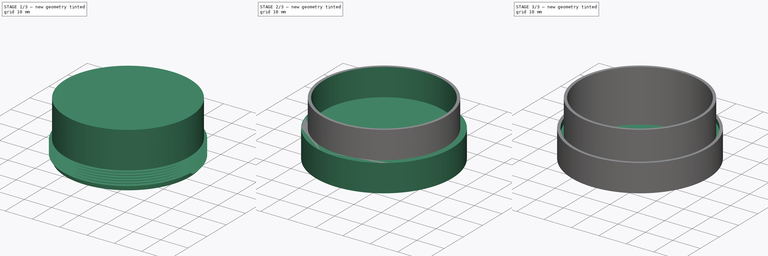
[diagram: build sequence overview — one tinted view per stage of 3, left to right]
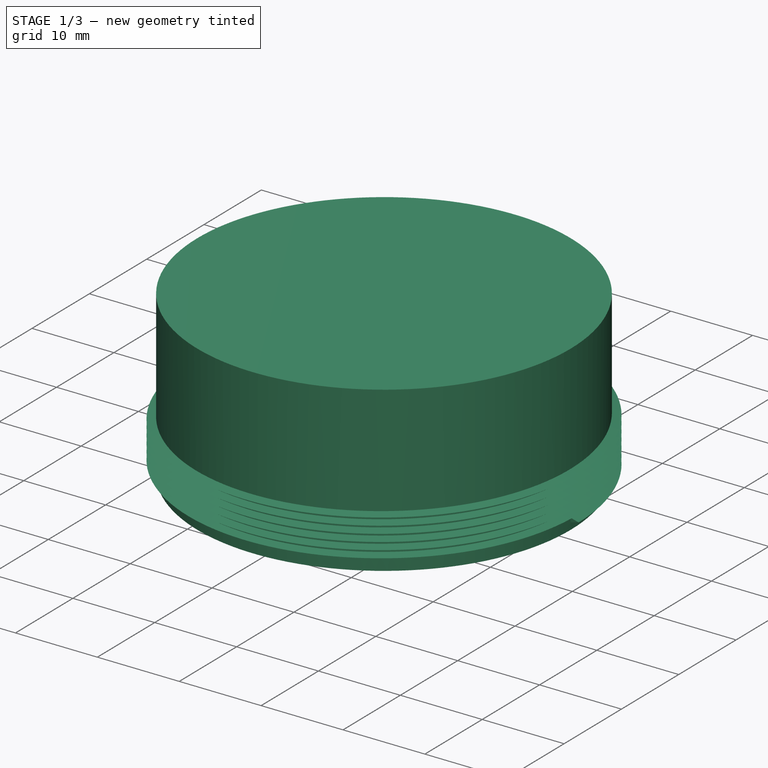
[diagram: stage 1 of 3 — iso view after this stage's code; geometry added in this stage tinted green]
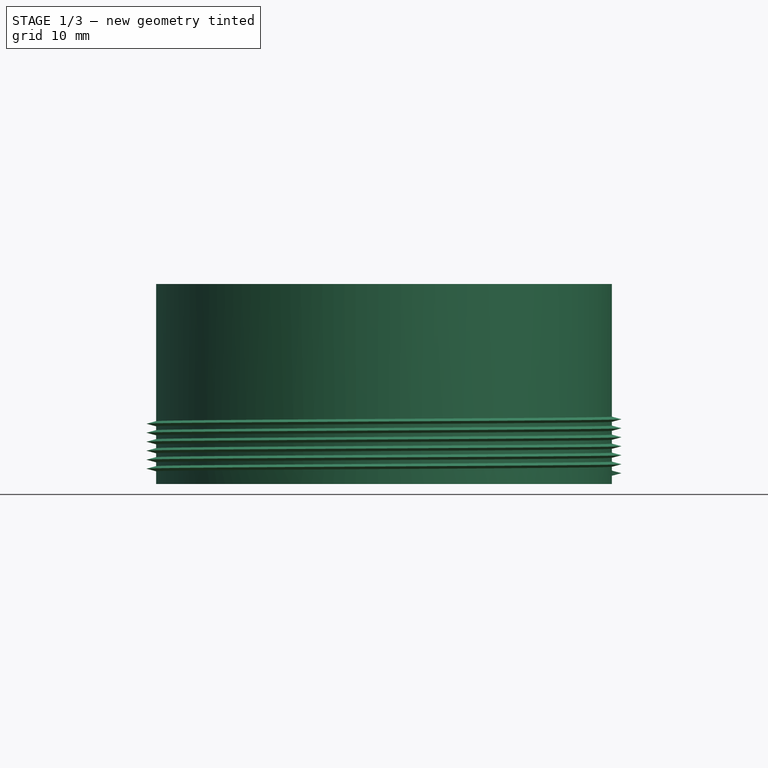
[diagram: stage 1 of 3 — front view after this stage's code; geometry added in this stage tinted green]
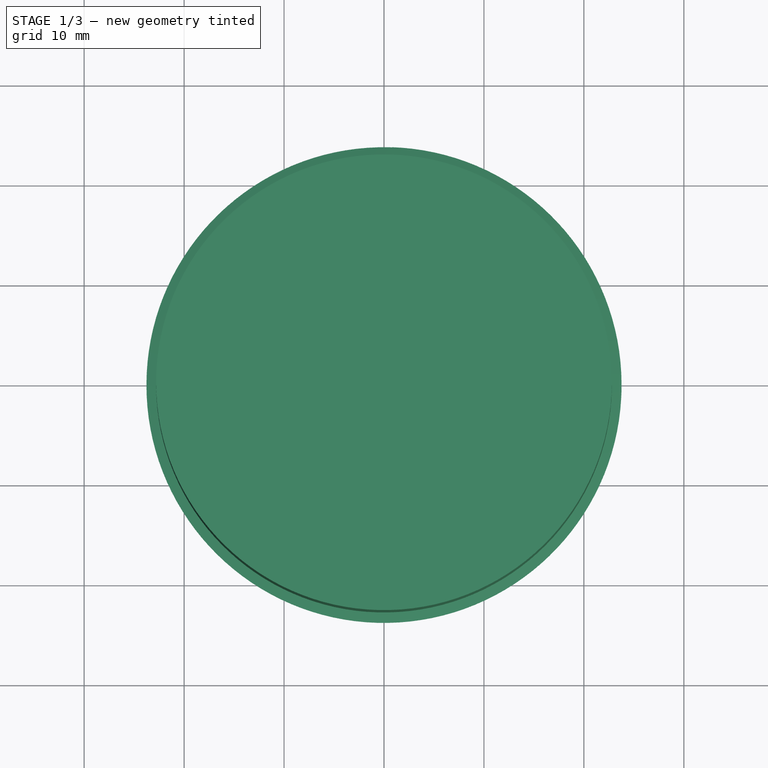
[diagram: stage 1 of 3 — top view after this stage's code; geometry added in this stage tinted green]
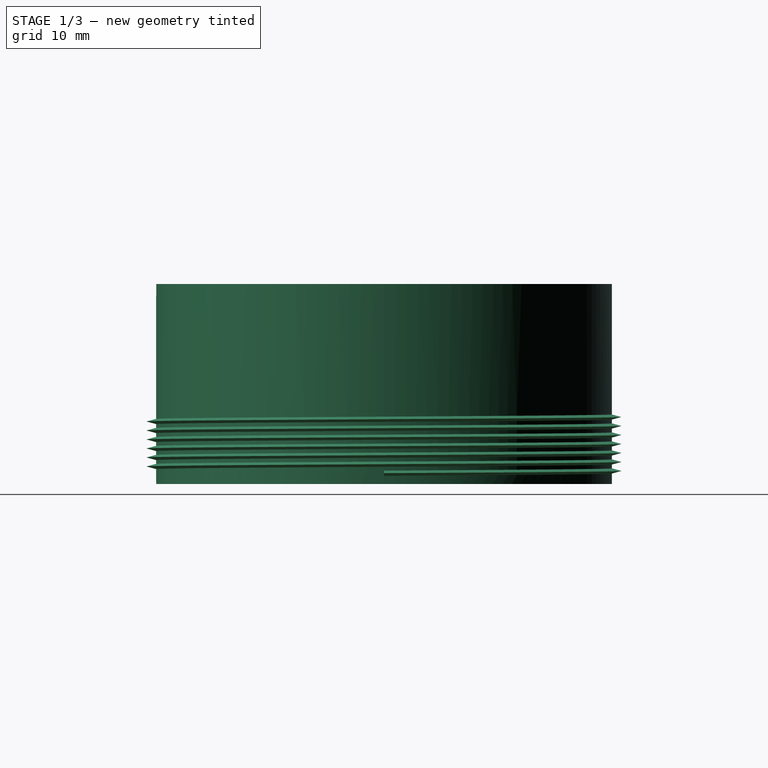
[diagram: stage 1 of 3 — right view after this stage's code; geometry added in this stage tinted green]
FCSTD DOCUMENT  (FreeCAD 1.0R39285 (Git))
Label: filament-clip
License: All rights reserved
LicenseURL: https://en.wikipedia.org/wiki/All_rights_reserved
objects: Sketcher::SketchObject×5, PartDesign::Pad×2, PartDesign::AdditiveHelix×2, PartDesign::Body×2, App::VarSet×1, PartDesign::Pocket×1, PartDesign::Hole×1
note: 30 computed .brp shape members not serialized (recipe doc carries the construction recipe); baked Part::Feature solids carry a one-line shape summary decoded from their .brp

FEATURE [PartDesign::Body] Body  label="Lid"
  AllowCompound = false
  Group = -> [Sketch,Pad,Sketch001,Pocket,Sketch002,AdditiveHelix]
  Origin = -> Origin
  Tip = -> AdditiveHelix
FEATURE [Sketcher::SketchObject] Sketch003
  ArcFitTolerance = 1e-06
  AttachmentSupport = -> [XY_Plane001]
  FullyConstrained = true
  MakeInternals = false
  MapMode = 5
  expr: Constraints[1] = VarSet.Base_LidOuterDiameter - 2 * VarSet.Base_LidThickness - 2 * VarSet.Base_ThreadHeight
  sketch-geometry (1):
    g0: Circle CenterX=0 CenterY=0 CenterZ=0 NormalX=0 NormalY=0 NormalZ=1 AngleXU=0 Radius=22.8
  constraints (2):
    c: Coincident(g0,g-1)
    c: Diameter(g0) = 45.6
FEATURE [PartDesign::Pad] Pad001
  Direction = (0,0,1)
  Length = 20
  Length2 = 10
  Profile = -> Sketch003
  ReferenceAxis = -> Sketch003 [N_Axis]
  Refine = true
  Suppressed = false
  Type = 0
FEATURE [Sketcher::SketchObject] Sketch004
  ArcFitTolerance = 1e-06
  AttachmentSupport = -> [XZ_Plane001]
  ExternalGeometry = -> [Pad001]
  FullyConstrained = false
  MakeInternals = false
  MapMode = 5
  Placement = pos=(0,0,0) rot=(1,0,0;1.5708rad)
  sketch-geometry (3):
    g0: LineSegment StartX=22.8 StartY=0.817517 StartZ=0 EndX=23.7659 EndY=1.07634 EndZ=0
    g1: LineSegment StartX=23.7659 StartY=1.07634 StartZ=0 EndX=22.8 EndY=1.33516 EndZ=0
    g2: LineSegment StartX=22.8 StartY=0.817517 StartZ=0 EndX=22.8 EndY=1.33516 EndZ=0
  constraints (8):
    c: Distance(g0) = 1
    c: PointOnObject(g0,g-3)
    c: Coincident(g1,g0)
    c: PointOnObject(g1,g-3)
    c: Angle(g1,g0) = 0.523599
    c: Angle(g-3,g1) = 1.309
    c: Coincident(g2,g0)
    c: Coincident(g2,g1)
FEATURE [PartDesign::AdditiveHelix] AdditiveHelix001
  Angle = 0
  Axis = (0,2e-16,1)
  Base = (0,0,0)
  BaseFeature = -> Pad001
  Growth = 0
  HasBeenEdited = true
  Height = 5.62
  LeftHanded = false
  Mode = 0
  Outside = false
  Pitch = 0.9
  Profile = -> Sketch004
  ReferenceAxis = -> Sketch004 [V_Axis]
  Refine = true
  Suppressed = false
  Tolerance = 0.1
  Turns = 6.24444
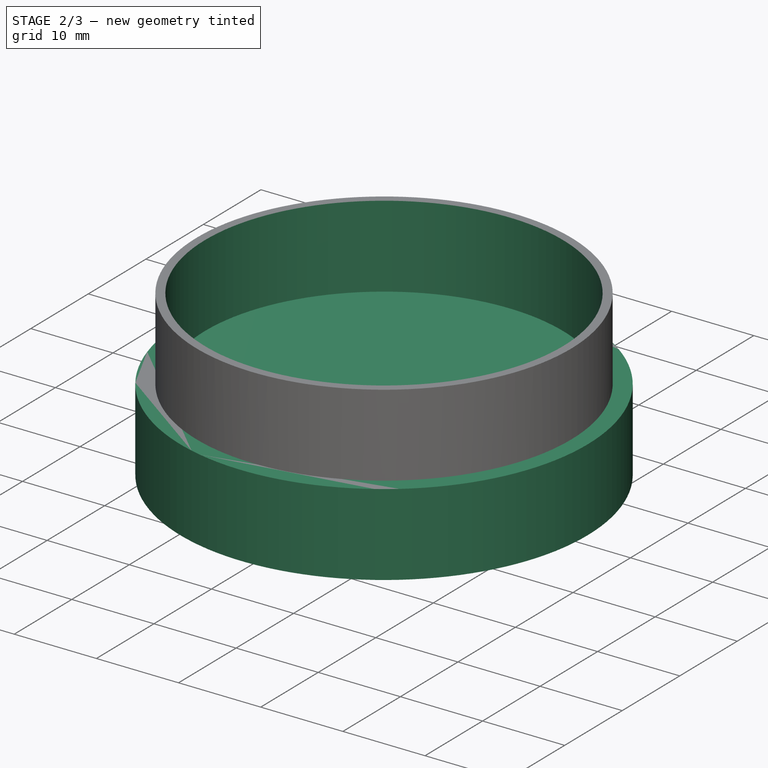
[diagram: stage 2 of 3 — iso view after this stage's code; geometry added in this stage tinted green]
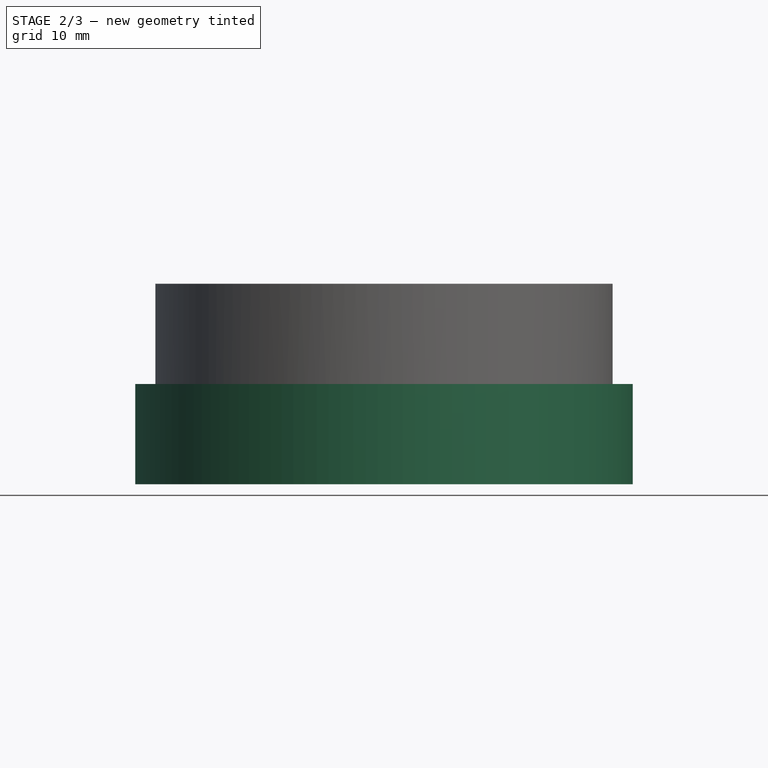
[diagram: stage 2 of 3 — front view after this stage's code; geometry added in this stage tinted green]
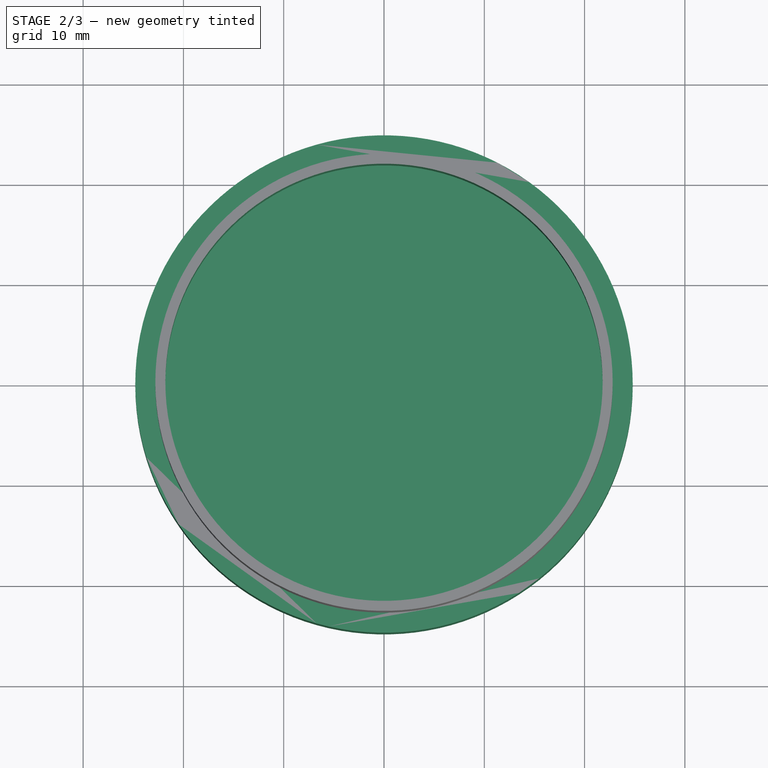
[diagram: stage 2 of 3 — top view after this stage's code; geometry added in this stage tinted green]
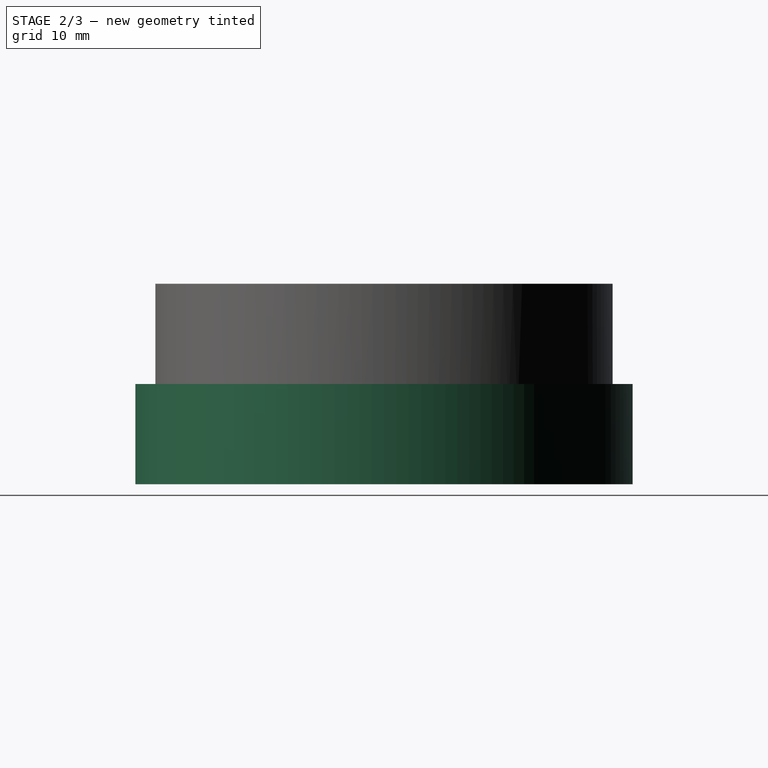
[diagram: stage 2 of 3 — right view after this stage's code; geometry added in this stage tinted green]
FEATURE [App::VarSet] VarSet
  Base_InnerWallThickness = 1
  Base_LidHeight = 10
  Base_LidOuterDiameter = 49.6
  Base_LidThickness = 1
  Base_Rim = 8
  Base_RimThickness = 3.7
  Base_SpoolInnerWidth = 59.6
  Base_SpoolOuterDiameter = 200
  Base_SpoolOuterWidth = 67
  Base_ThreadHeight = 1
  expr: Base_LidOuterDiameter = Base_SpoolInnerWidth - 10 mm
  expr: Base_SpoolInnerWidth = Base_SpoolOuterWidth - 2 * Base_RimThickness
FEATURE [Sketcher::SketchObject] Sketch
  ArcFitTolerance = 1e-06
  AttachmentSupport = -> [XY_Plane]
  FullyConstrained = true
  MakeInternals = false
  MapMode = 5
  expr: Constraints[1] = VarSet.Base_LidOuterDiameter
  sketch-geometry (1):
    g0: Circle CenterX=0 CenterY=0 CenterZ=0 NormalX=0 NormalY=0 NormalZ=1 AngleXU=0 Radius=24.8
  constraints (2):
    c: Coincident(g0,g-1)
    c: Diameter(g0) = 49.6
FEATURE [PartDesign::Pad] Pad
  Direction = (0,0,1)
  Length = 10
  Length2 = 10
  Profile = -> Sketch
  ReferenceAxis = -> Sketch [N_Axis]
  Refine = true
  Suppressed = false
  Type = 0
  expr: Length = VarSet.Base_LidHeight
FEATURE [PartDesign::Hole] Hole
  BaseFeature = -> AdditiveHelix001
  CustomThreadClearance = 0
  Depth = 25
  DepthType = 0
  Diameter = 43.6
  DrillForDepth = false
  DrillPoint = 1
  DrillPointAngle = 118
  HoleCutCountersinkAngle = 90
  HoleCutCustomValues = false
  HoleCutDepth = 0
  HoleCutDiameter = 6.1
  HoleCutType = 0
  ModelThread = false
  Profile = -> AdditiveHelix001 [Face22]
  Refine = true
  Suppressed = false
  Tapered = false
  TaperedAngle = 90
  ThreadClass = 0
  ThreadDepth = 25
  ThreadDepthType = 0
  ThreadDirection = 0
  ThreadFit = 0
  ThreadSize = 0
  ThreadType = 0
  Threaded = false
  UseCustomThreadClearance = false
  expr: Diameter = VarSet.Base_LidOuterDiameter - VarSet.Base_LidThickness * 6
FEATURE [PartDesign::Body] Body001  label="NeckFinish"
  AllowCompound = false
  Group = -> [Sketch003,Pad001,Sketch004,AdditiveHelix001,Hole]
  Origin = -> Origin001
  Tip = -> Hole
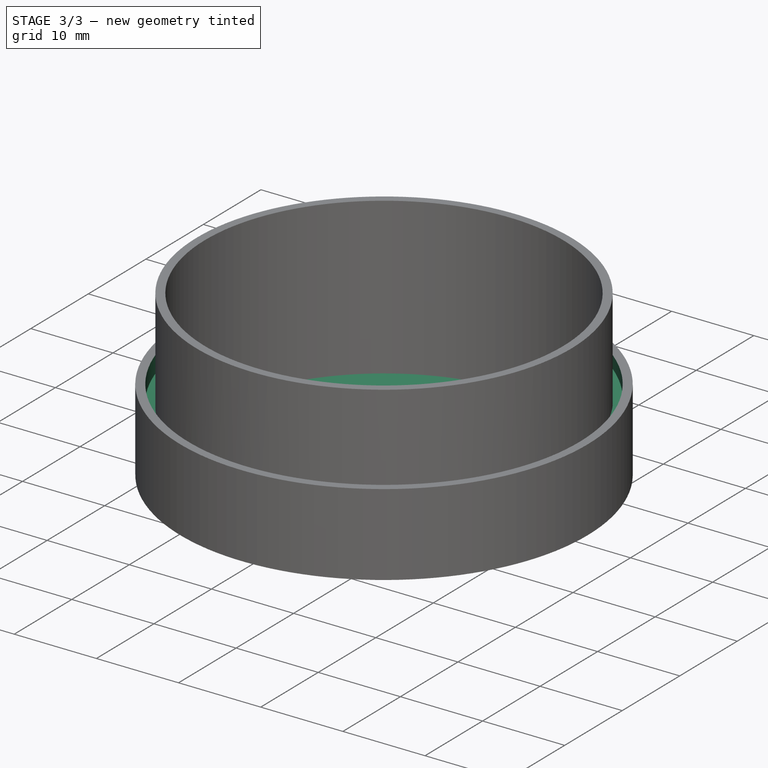
[diagram: stage 3 of 3 — iso view after this stage's code; geometry added in this stage tinted green]
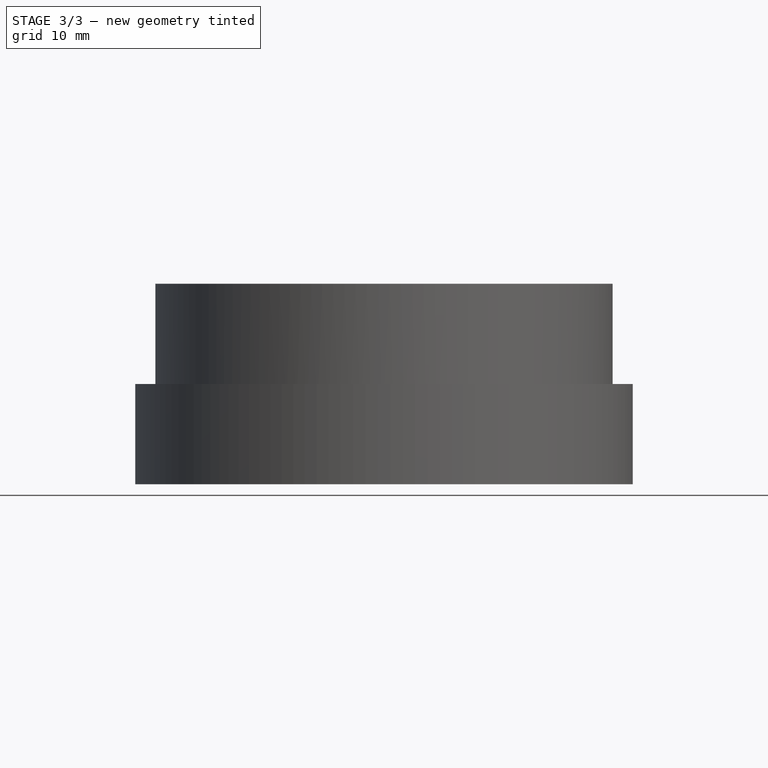
[diagram: stage 3 of 3 — front view after this stage's code; geometry added in this stage tinted green]
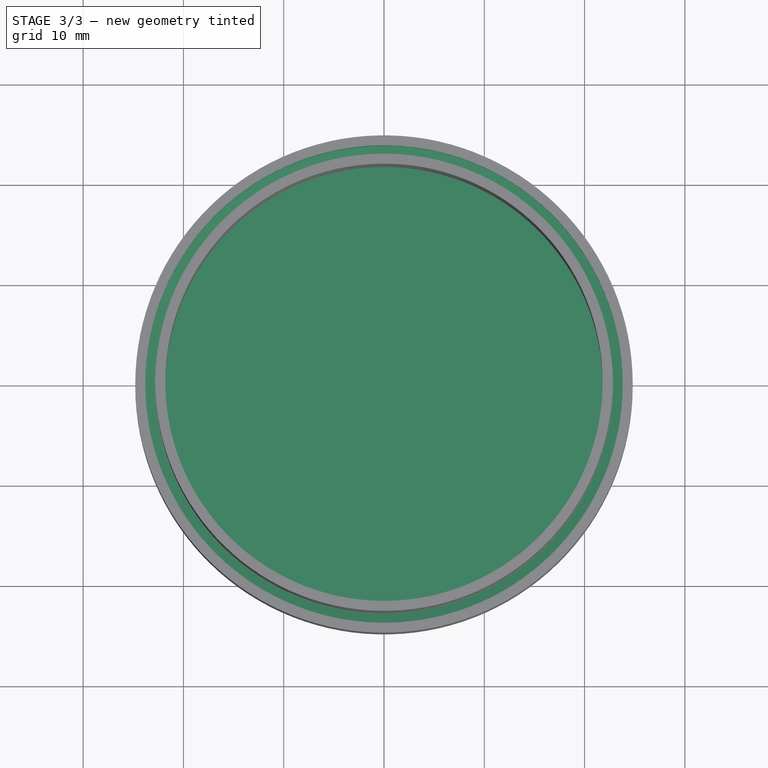
[diagram: stage 3 of 3 — top view after this stage's code; geometry added in this stage tinted green]
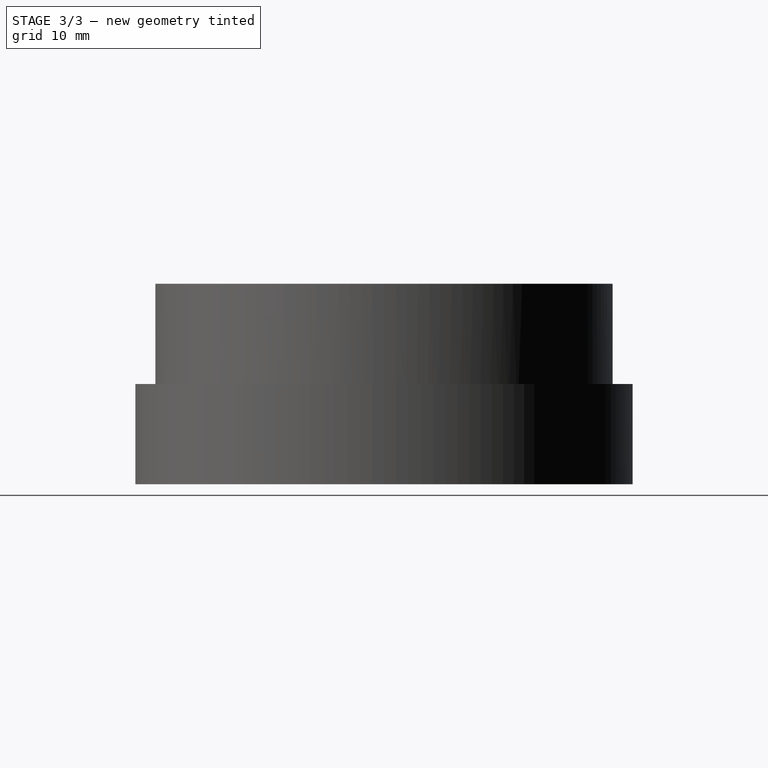
[diagram: stage 3 of 3 — right view after this stage's code; geometry added in this stage tinted green]
FEATURE [Sketcher::SketchObject] Sketch001
  ArcFitTolerance = 1e-06
  AttachmentSupport = -> [Pad]
  FullyConstrained = true
  MakeInternals = false
  MapMode = 5
  Placement = pos=(0,0,10) rot=(0,0,1;0rad)
  expr: Constraints[1] = VarSet.Base_LidOuterDiameter - 2 * VarSet.Base_LidThickness
  sketch-geometry (1):
    g0: Circle CenterX=0 CenterY=0 CenterZ=0 NormalX=0 NormalY=0 NormalZ=1 AngleXU=0 Radius=23.8
  constraints (2):
    c: Coincident(g0,g-1)
    c: Diameter(g0) = 47.6
FEATURE [PartDesign::Pocket] Pocket
  BaseFeature = -> Pad
  Direction = (0,0,-1)
  Length = 9
  Length2 = 5
  Profile = -> Sketch001
  ReferenceAxis = -> Sketch001 [N_Axis]
  Refine = true
  Suppressed = false
  Type = 0
  expr: Length = VarSet.Base_LidHeight - VarSet.Base_LidThickness
FEATURE [Sketcher::SketchObject] Sketch002
  ArcFitTolerance = 1e-06
  AttachmentSupport = -> [XZ_Plane]
  ExternalGeometry = -> [Pocket]
  FullyConstrained = false
  MakeInternals = false
  MapMode = 5
  Placement = pos=(0,0,0) rot=(1,0,0;1.5708rad)
  sketch-geometry (3):
    g0: LineSegment StartX=23.8 StartY=2.43358 StartZ=0 EndX=22.8341 EndY=2.6924 EndZ=0
    g1: LineSegment StartX=22.8341 StartY=2.6924 StartZ=0 EndX=23.8 EndY=2.95122 EndZ=0
    g2: LineSegment StartX=23.8 StartY=2.95122 StartZ=0 EndX=23.8 EndY=2.43358 EndZ=0
  constraints (8):
    c: Distance(g0) = 1
    c: PointOnObject(g0,g-3)
    c: Coincident(g1,g0)
    c: PointOnObject(g1,g-3)
    c: Angle(g0,g1) = 0.523599
    c: Angle(g1,g-3) = 1.309
    c: Coincident(g2,g1)
    c: Coincident(g2,g0)
FEATURE [PartDesign::AdditiveHelix] AdditiveHelix
  Angle = 0
  Axis = (0,2e-16,1)
  Base = (0,0,0)
  BaseFeature = -> Pocket
  Growth = 0
  HasBeenEdited = true
  Height = 5.62
  LeftHanded = false
  Mode = 0
  Outside = false
  Pitch = 0.9
  Profile = -> Sketch002
  ReferenceAxis = -> Sketch002 [V_Axis]
  Refine = true
  Suppressed = false
  Tolerance = 0.1
  Turns = 6.24444
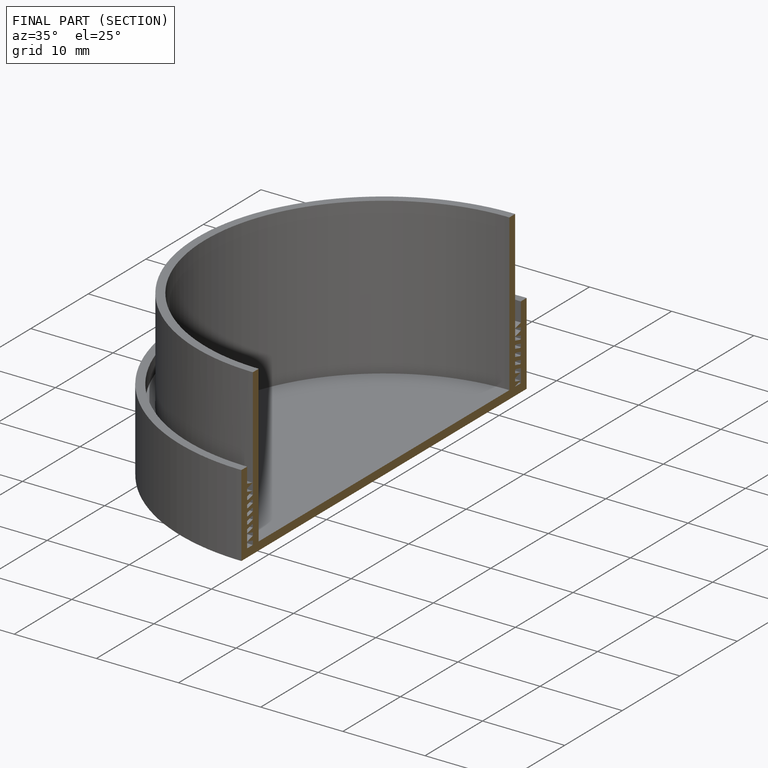
[diagram: finished part — half-section view (interior)]
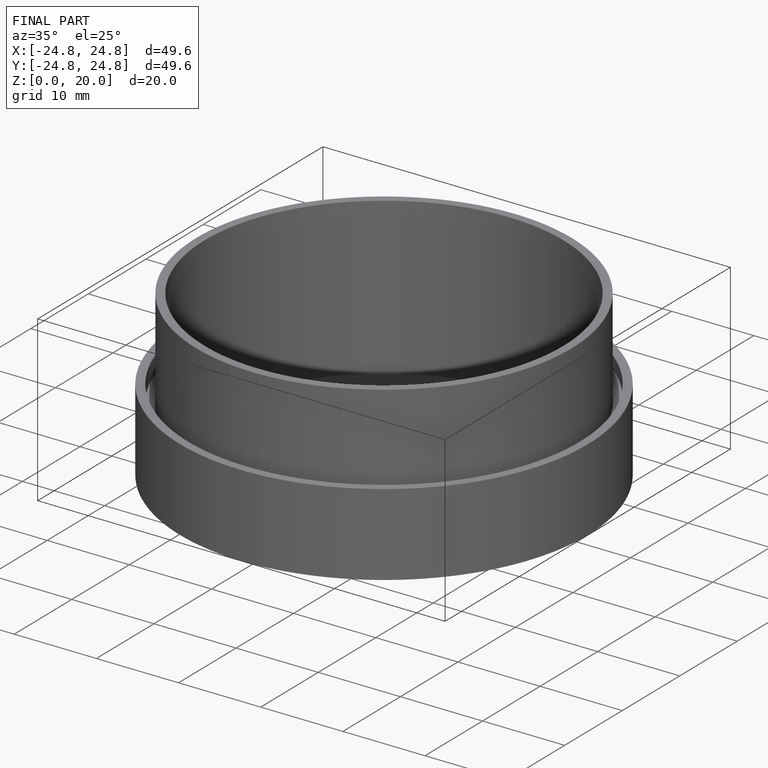
[diagram: finished part — iso view with bounding-box wireframe]
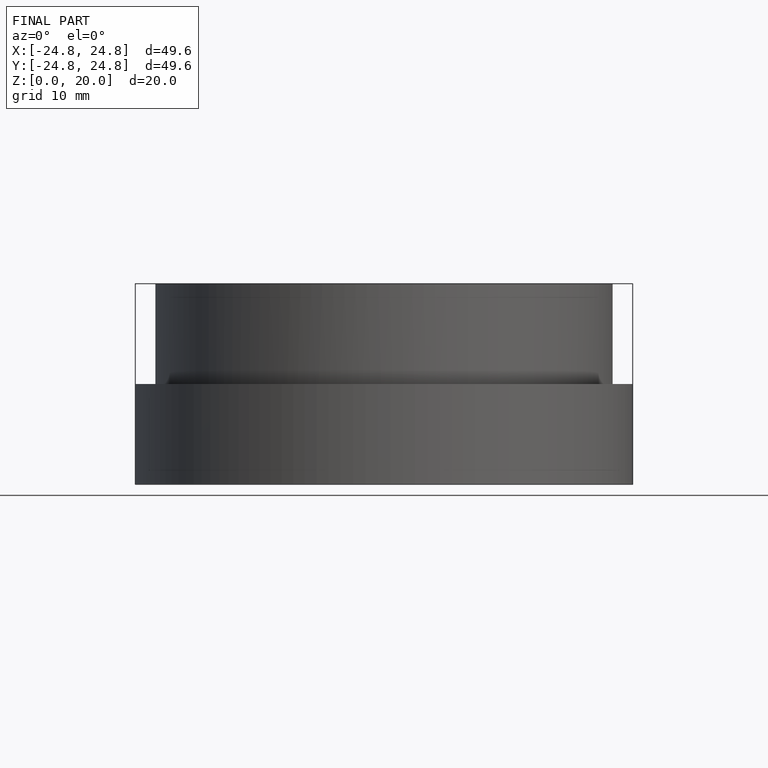
[diagram: finished part — front view with bounding-box wireframe]
